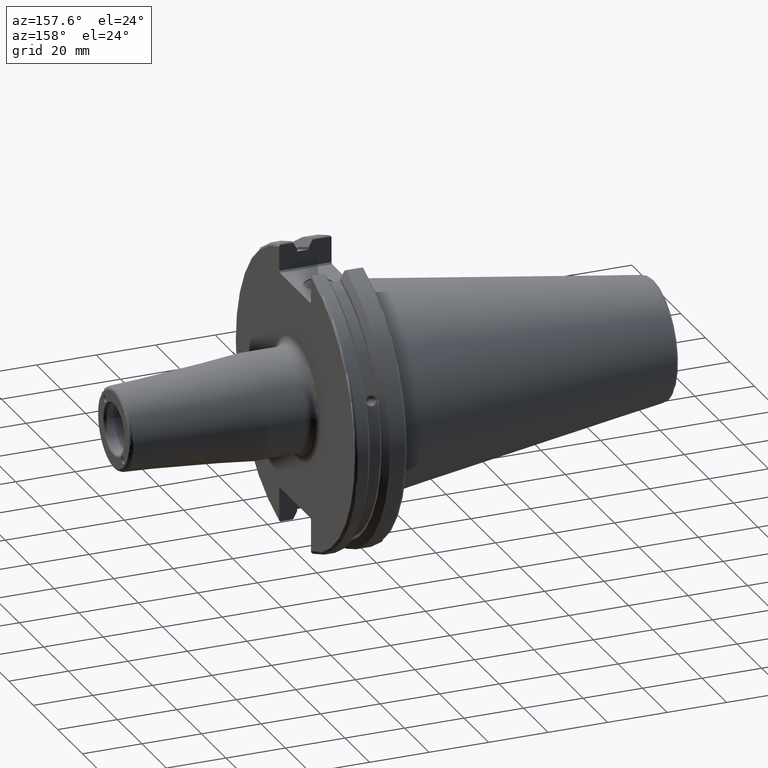
[diagram: clean part render]
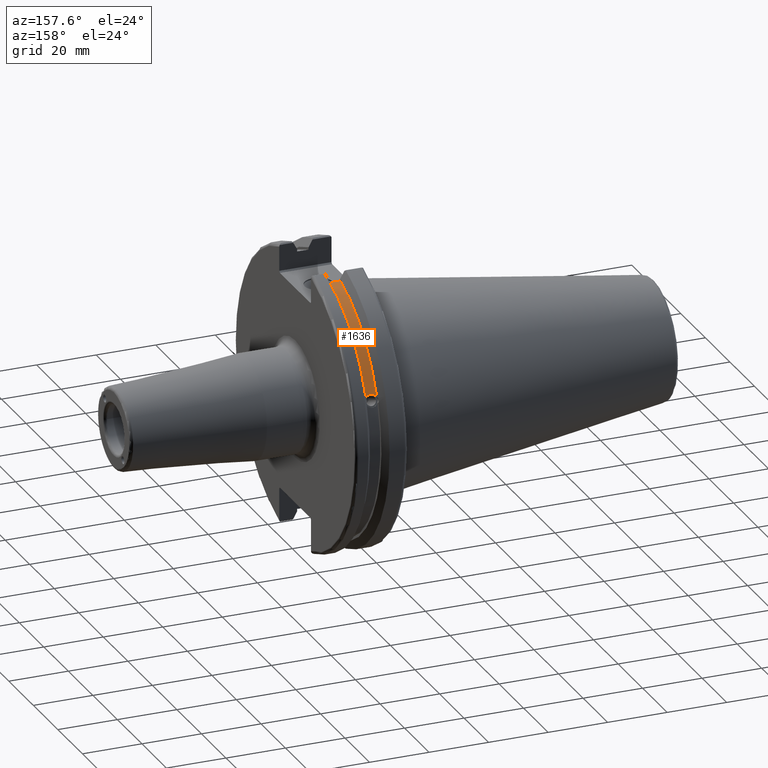
[diagram: same view with one face highlighted and labeled with its STEP entity id]
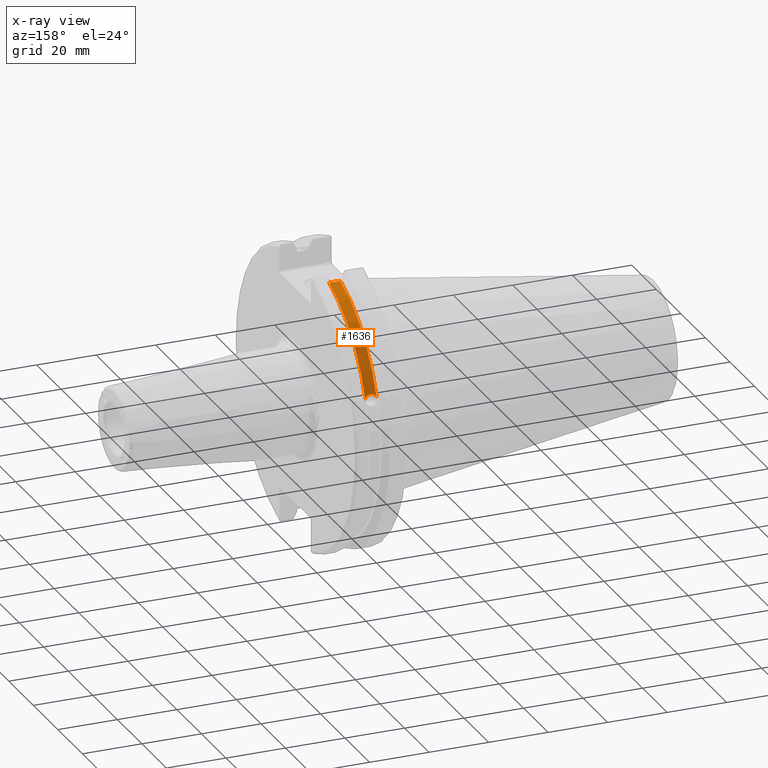
[diagram: x-ray of the same camera — body ghosted, the highlighted face saturated]
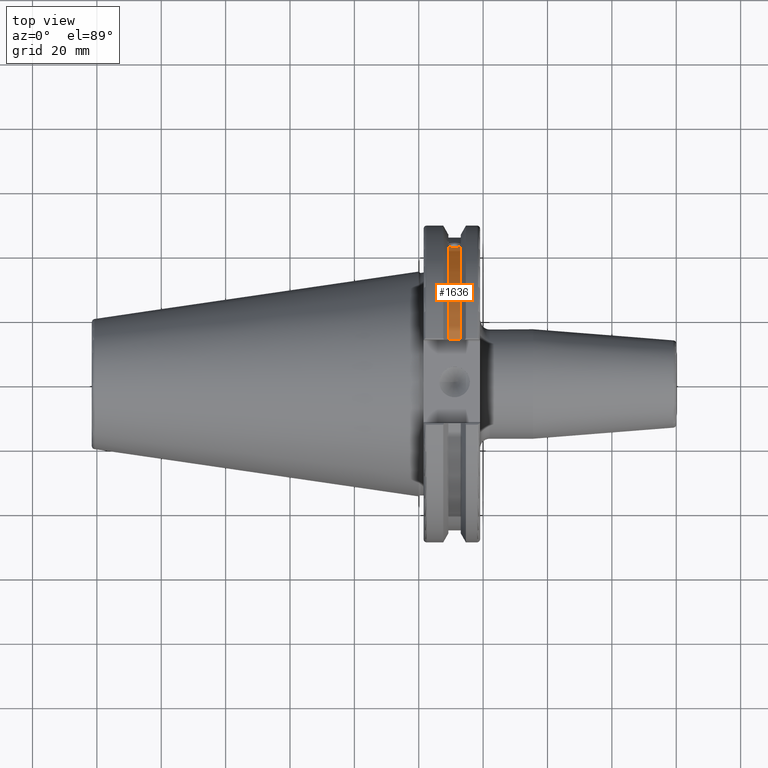
[diagram: same view with one face highlighted and labeled with its STEP entity id]
A machine part, auxiliary view. The second image highlights one B-rep face of the part: STEP entity #1636.
The next image is the same camera in x-ray: the body ghosted, the highlighted face saturated — about 0% of this face is hidden behind the body in this view.
A second angle (top view) of the same face is appended — the face is thin or edge-on in the first view.
In plain terms, the highlighted cylindrical surface (partial cylindrical patch) has radius 45.6435 mm, axis along (1, 0, 0).
Its self-contained STEP definition (entity closure, byte-faithful):
#122=B_SPLINE_CURVE_WITH_KNOTS('',3,(#2877,#2878,#2879,#2880,#2881,#2882,
#2883,#2884,#2885,#2886,#2887,#2888,#2889,#2890,#2891),.UNSPECIFIED.,.F.,
 .F.,(4,2,2,3,2,2,4),(-0.231381164054414,-0.158232381135623,-0.0791161905678115,
0.,0.0791161905678115,0.158232381135623,0.23138116405456),.UNSPECIFIED.);
#169=CYLINDRICAL_SURFACE('',#1825,45.6435);
#250=FACE_OUTER_BOUND('',#359,.T.);
#359=EDGE_LOOP('',(#1479,#1480,#1481,#1482));
#462=LINE('',#3216,#560);
#560=VECTOR('',#2209,10.);
#642=CIRCLE('',#1824,45.6435);
#643=CIRCLE('',#1826,45.6435);
#740=VERTEX_POINT('',#2874);
#741=VERTEX_POINT('',#2876);
#805=VERTEX_POINT('',#3213);
#806=VERTEX_POINT('',#3215);
#929=EDGE_CURVE('',#741,#740,#122,.T.);
#1028=EDGE_CURVE('',#806,#805,#462,.T.);
#1042=EDGE_CURVE('',#741,#805,#642,.T.);
#1043=EDGE_CURVE('',#740,#806,#643,.T.);
#1479=ORIENTED_EDGE('',*,*,#929,.T.);
#1480=ORIENTED_EDGE('',*,*,#1043,.T.);
#1481=ORIENTED_EDGE('',*,*,#1028,.T.);
#1482=ORIENTED_EDGE('',*,*,#1042,.F.);
#1636=ADVANCED_FACE('',(#250),#169,.T.);
#1824=AXIS2_PLACEMENT_3D('',#3247,#2248,#2249);
#1825=AXIS2_PLACEMENT_3D('',#3248,#2250,#2251);
#1826=AXIS2_PLACEMENT_3D('',#3249,#2252,#2253);
#2209=DIRECTION('',(1.,0.,0.));
#2248=DIRECTION('center_axis',(1.,0.,0.));
#2249=DIRECTION('ref_axis',(0.,0.,-1.));
#2250=DIRECTION('center_axis',(1.,0.,0.));
#2251=DIRECTION('ref_axis',(0.,1.,0.));
#2252=DIRECTION('center_axis',(1.,0.,0.));
#2253=DIRECTION('ref_axis',(0.,0.,-1.));
#2874=CARTESIAN_POINT('',(9.21200000000001,42.5884454651059,16.4180816515116));
#2876=CARTESIAN_POINT('',(13.042,42.5884454651059,16.4180816515116));
#2877=CARTESIAN_POINT('Ctrl Pts',(13.042,42.5884454651059,16.4180816515116));
#2878=CARTESIAN_POINT('Ctrl Pts',(12.9357782240206,42.5035323832641,16.6383458840849));
#2879=CARTESIAN_POINT('Ctrl Pts',(12.784291924423,42.4245077186417,16.8380515255915));
#2880=CARTESIAN_POINT('Ctrl Pts',(12.4254949659982,42.2908173017388,17.1712159412199));
#2881=CARTESIAN_POINT('Ctrl Pts',(12.1893796719457,42.2294695309474,17.3208689126276));
#2882=CARTESIAN_POINT('Ctrl Pts',(11.6719940832128,42.1475978938586,17.5191491957165));
#2883=CARTESIAN_POINT('Ctrl Pts',(11.390720635226,42.1271980081205,17.5678194501937));
#2884=CARTESIAN_POINT('Ctrl Pts',(11.127,42.1271980081205,17.5678194501937));
#2885=CARTESIAN_POINT('Ctrl Pts',(10.863279364774,42.1271980081205,17.5678194501937));
#2886=CARTESIAN_POINT('Ctrl Pts',(10.5820059167872,42.1475978938586,17.5191491957165));
#2887=CARTESIAN_POINT('Ctrl Pts',(10.0646203280543,42.2294695309474,17.3208689126276));
#2888=CARTESIAN_POINT('Ctrl Pts',(9.82850503400179,42.2908173017388,17.1712159412199));
#2889=CARTESIAN_POINT('Ctrl Pts',(9.46970807557666,42.4245077186418,16.8380515255912));
#2890=CARTESIAN_POINT('Ctrl Pts',(9.31822177598178,42.5035323832622,16.6383458840897));
#2891=CARTESIAN_POINT('Ctrl Pts',(9.21200000000001,42.5884454651059,16.4180816515116));
#3213=CARTESIAN_POINT('',(13.042,12.95,43.7678716897452));
#3215=CARTESIAN_POINT('',(9.21200000000001,12.95,43.7678716897452));
#3216=CARTESIAN_POINT('',(11.127,12.95,43.7678716897452));
#3247=CARTESIAN_POINT('Origin',(13.042,0.,0.));
#3248=CARTESIAN_POINT('Origin',(11.127,0.,0.));
#3249=CARTESIAN_POINT('Origin',(9.21200000000001,0.,0.));